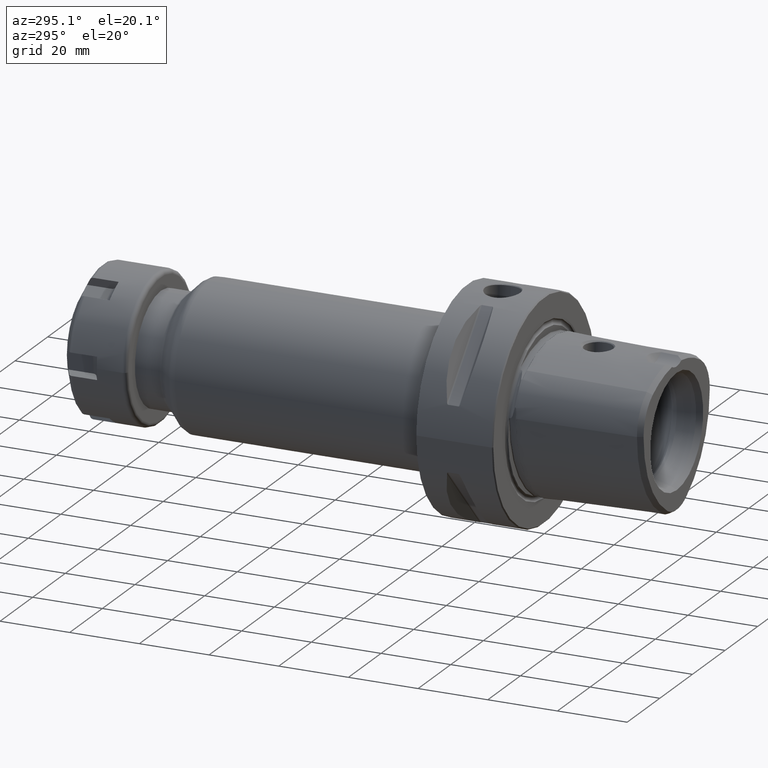
[diagram: clean part render]
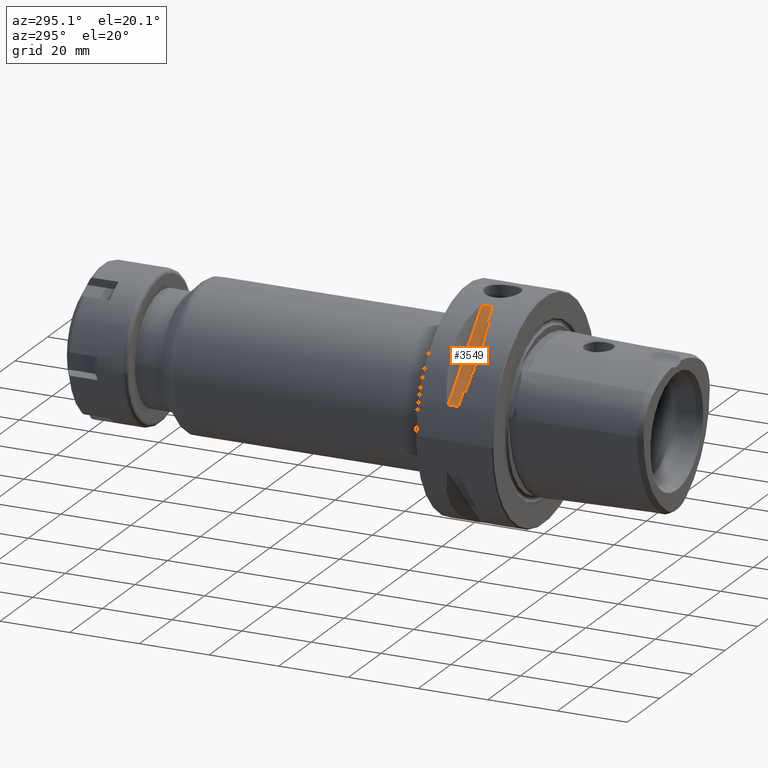
[diagram: same view with one face highlighted and labeled with its STEP entity id]
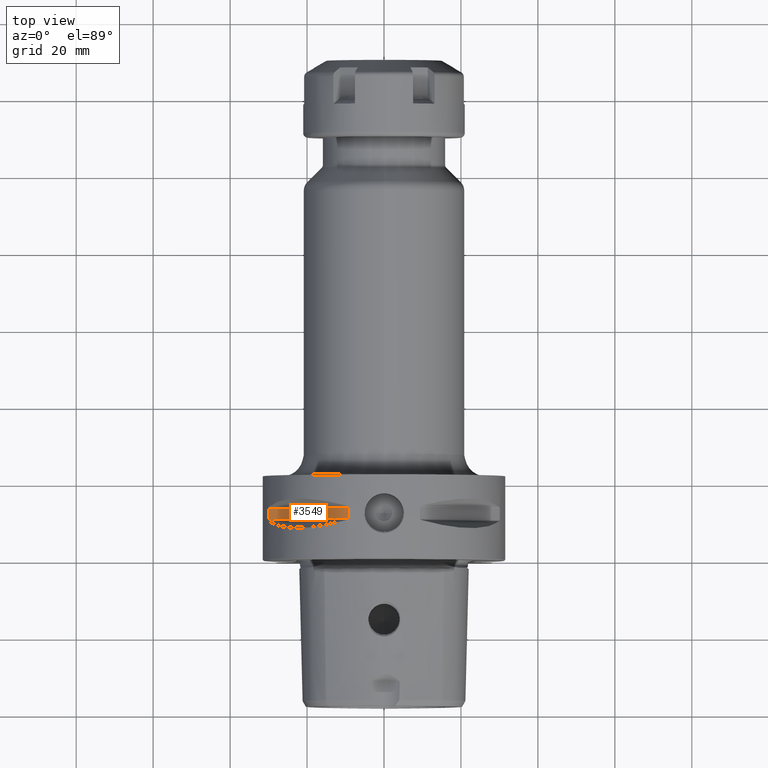
[diagram: same view with one face highlighted and labeled with its STEP entity id]
A machine part, auxiliary view. The second image highlights one B-rep face of the part: STEP entity #3549.
A second angle (top view) of the same face is appended — the face is thin or edge-on in the first view.
In plain terms, the highlighted planar face has unit normal (0.7071, 0, -0.7071).
Its self-contained STEP definition (entity closure, byte-faithful):
#1399=DIRECTION('',(0.E0,-1.E0,0.E0));
#1400=VECTOR('',#1399,2.922649730810E0);
#1401=CARTESIAN_POINT('',(-3.008059276032E1,1.346132486541E1,9.349221314525E0));
#1402=LINE('',#1401,#1400);
#1411=DIRECTION('',(0.E0,-1.E0,0.E0));
#1412=VECTOR('',#1411,2.922649730810E0);
#1413=CARTESIAN_POINT('',(-9.349221314525E0,1.346132486541E1,3.008059276032E1));
#1414=LINE('',#1413,#1412);
#1533=DIRECTION('',(7.071067811865E-1,0.E0,7.071067811865E-1));
#1534=VECTOR('',#1533,2.931858666523E1);
#1535=CARTESIAN_POINT('',(-3.008059276032E1,1.053867513459E1,9.349221314525E0));
#1536=LINE('',#1535,#1534);
#1537=DIRECTION('',(7.071067811865E-1,0.E0,7.071067811865E-1));
#1538=VECTOR('',#1537,2.931858666523E1);
#1539=CARTESIAN_POINT('',(-3.008059276032E1,1.346132486541E1,9.349221314525E0));
#1540=LINE('',#1539,#1538);
#1974=CARTESIAN_POINT('',(-3.008059276032E1,1.053867513459E1,9.349221314525E0));
#1975=CARTESIAN_POINT('',(-9.349221314525E0,1.053867513459E1,3.008059276032E1));
#1976=VERTEX_POINT('',#1974);
#1977=VERTEX_POINT('',#1975);
#1978=CARTESIAN_POINT('',(-3.008059276032E1,1.346132486541E1,9.349221314525E0));
#1979=CARTESIAN_POINT('',(-9.349221314525E0,1.346132486541E1,3.008059276032E1));
#1980=VERTEX_POINT('',#1978);
#1981=VERTEX_POINT('',#1979);
#3536=CARTESIAN_POINT('',(1.945255215891E1,1.375E1,5.888236623375E1));
#3537=DIRECTION('',(7.071067811865E-1,0.E0,-7.071067811865E-1));
#3538=DIRECTION('',(0.E0,-1.E0,0.E0));
#3539=AXIS2_PLACEMENT_3D('',#3536,#3537,#3538);
#3540=PLANE('',#3539);
#3542=ORIENTED_EDGE('',*,*,#3541,.F.);
#3543=ORIENTED_EDGE('',*,*,#3451,.F.);
#3545=ORIENTED_EDGE('',*,*,#3544,.T.);
#3546=ORIENTED_EDGE('',*,*,#3459,.T.);
#3547=EDGE_LOOP('',(#3542,#3543,#3545,#3546));
#3548=FACE_OUTER_BOUND('',#3547,.F.);
#3549=ADVANCED_FACE('',(#3548),#3540,.F.);
#3451=EDGE_CURVE('',#1980,#1976,#1402,.T.);
#3459=EDGE_CURVE('',#1981,#1977,#1414,.T.);
#3541=EDGE_CURVE('',#1976,#1977,#1536,.T.);
#3544=EDGE_CURVE('',#1980,#1981,#1540,.T.);